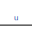
[diagram: root canvas - part 1/4, top center region]
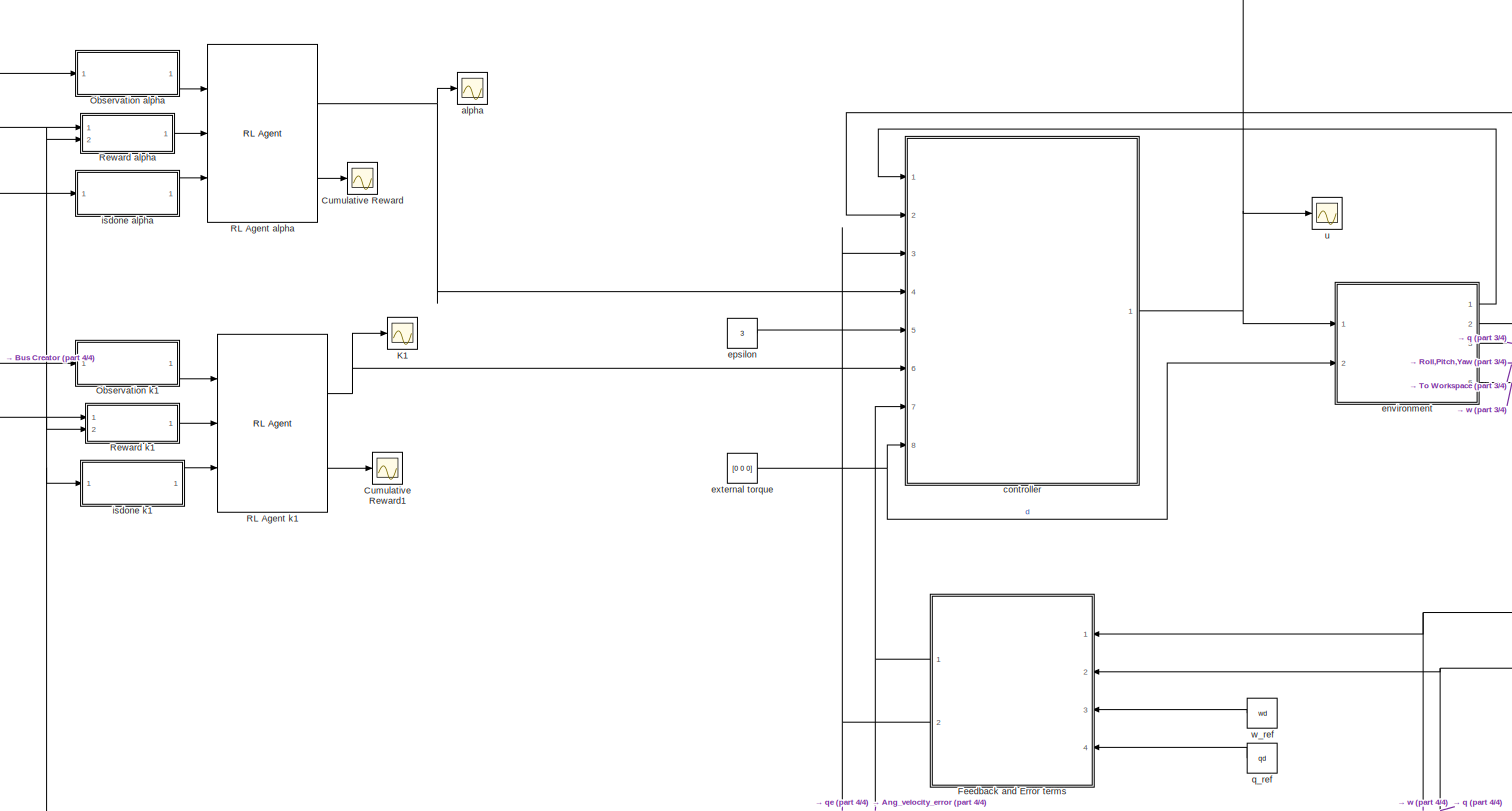
[diagram: root canvas - part 2/4, full width, middle band]
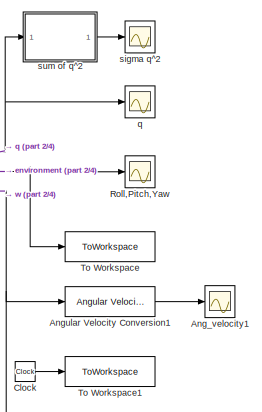
[diagram: root canvas - part 3/4, middle right region]
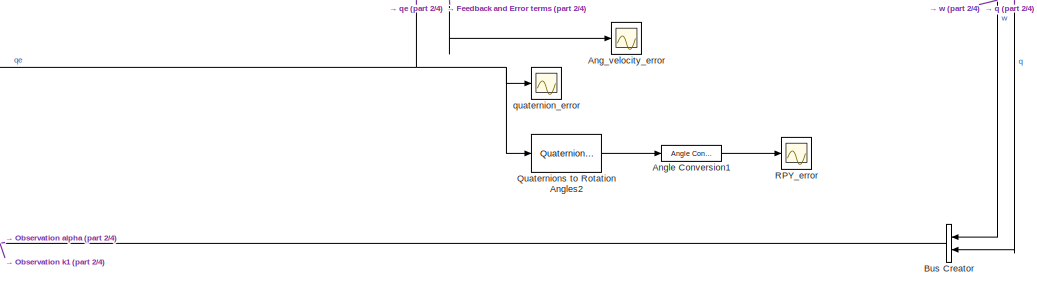
[diagram: root canvas - part 4/4, bottom center region]
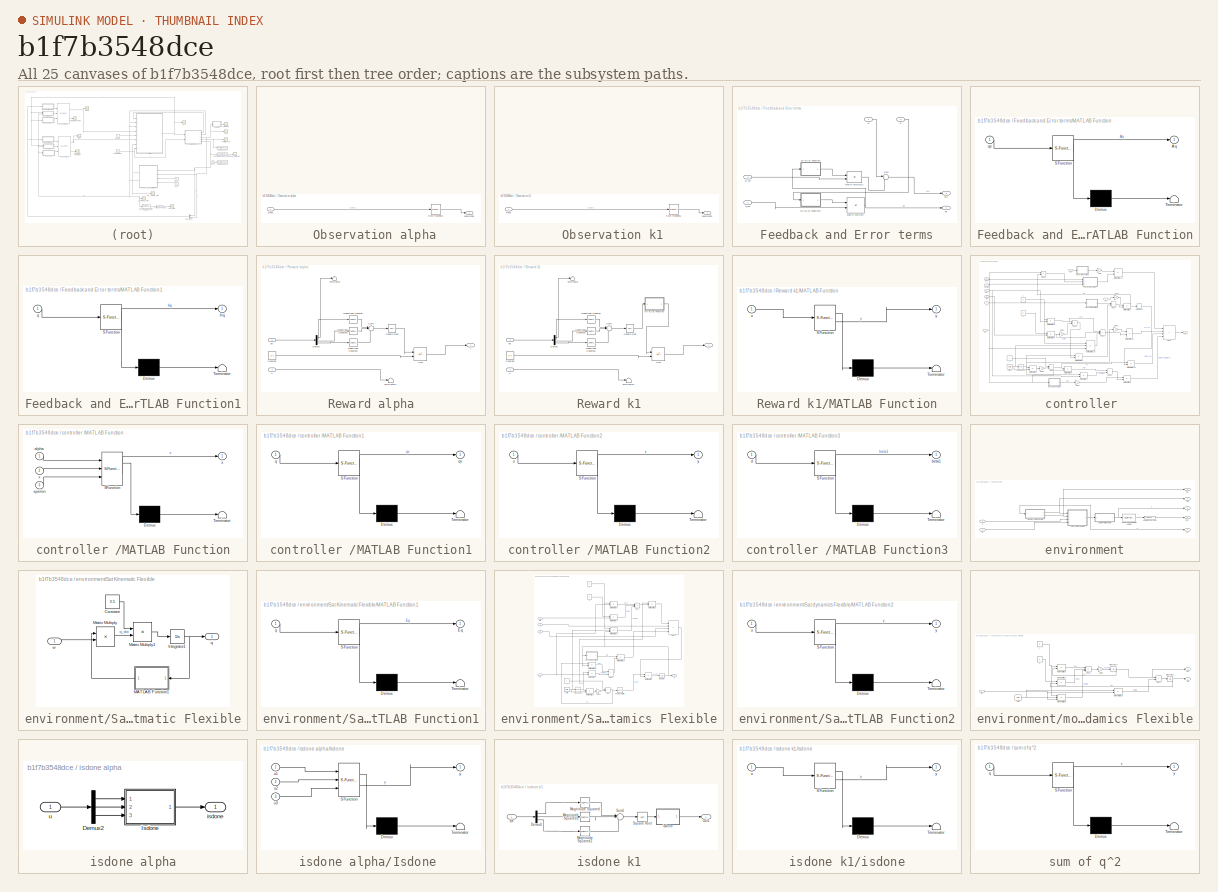
[diagram: thumbnail index - all 25 canvases of the model, root first then tree order]
MODEL slx_b1f7b3548dce
KIND model
CONFIG AbsTol = auto
CONFIG EnableMultiTasking = off
CONFIG FixedStep = 5
CONFIG MaxStep = auto
CONFIG MinStep = auto
CONFIG RelTol = auto
CONFIG SampleTimeConstraint = Unconstrained
CONFIG SolverName = VariableStepAuto
CONFIG StartTime = 0.0
CONFIG StopTime = 100
BLOCK [SubSystem]  Observation alpha
  Ports = [1, 1]
  RequestExecContextInheritance = off
BLOCK [RateTransition]  Observation alpha/Rate Transition1
BLOCK [Inport]  Observation alpha/meas
BLOCK [Outport]  Observation alpha/observation
  VectorParamsAs1DForOutWhenUnconnected = off
BLOCK [SubSystem]  Observation k1
  Ports = [1, 1]
  RequestExecContextInheritance = off
BLOCK [RateTransition]  Observation k1/Rate Transition1
BLOCK [Inport]  Observation k1/meas
BLOCK [Outport]  Observation k1/observation
  VectorParamsAs1DForOutWhenUnconnected = off
BLOCK [Scope] Ang_velocity1
  Floating = off
  NumInputPorts = 1
  Ports = [1]
  ScopeSpecificationString = Simulink.scopes.TimeScopeBlockCfg('CurrentConfiguration', extmgr.ConfigurationSet(extmgr.Configuration('Core','General UI',true),extmgr.Configuration('Core','Source UI',true),extmgr.Configuration('Sources','WiredSimulink',true,'DataLoggingVariableName','ScopeData4'),extmgr.Configuration('Visuals','Time Domain',true,'SerializedDisplays',{struct('MinYLimReal','-54.15469','MaxYLimReal','53.0558','YLa...<+1774ch>
BLOCK [Scope] Ang_velocity_error
  Floating = off
  NumInputPorts = 1
  Ports = [1]
  ScopeSpecificationString = Simulink.scopes.TimeScopeBlockCfg('CurrentConfiguration', extmgr.ConfigurationSet(extmgr.Configuration('Core','General UI',true),extmgr.Configuration('Core','Source UI',true),extmgr.Configuration('Sources','WiredSimulink',true,'DataLoggingVariableName','ScopeData1'),extmgr.Configuration('Visuals','Time Domain',true,'SerializedDisplays',{struct('MinYLimReal','-0.13149','MaxYLimReal','0.41258','YLab...<+1566ch>
BLOCK [Reference] Angle Conversion1  REF=aerolibconvert2/Angle Conversion
  Ports = [1, 1]
  SourceBlock = aerolibconvert2/Angle Conversion
  SourceProductBaseCode = AE
  SourceType = Angle Conversion
BLOCK [Reference] Angular Velocity Conversion1  REF=aerolibconvert2/Angular Velocity
Conversion
  Ports = [1, 1]
  SourceBlock = aerolibconvert2/Angular Velocity\nConversion
  SourceProductBaseCode = AE
  SourceType = Angular Velocity Conversion
BLOCK [BusCreator] Bus Creator
  DisplayOption = bar
  InheritFromInputs = on
  Inputs = 2
  Ports = [2, 1]
BLOCK [Clock] Clock
BLOCK [Scope] Cumulative Reward
  Floating = off
  NumInputPorts = 1
  Ports = [1]
  ScopeSpecificationString = Simulink.scopes.TimeScopeBlockCfg('CurrentConfiguration', extmgr.ConfigurationSet(extmgr.Configuration('Core','General UI',true),extmgr.Configuration('Core','Source UI',true),extmgr.Configuration('Sources','WiredSimulink',true,'DataLoggingVariableName','ScopeData2'),extmgr.Configuration('Visuals','Time Domain',true,'SerializedDisplays',{struct('MinYLimReal','-52.35763','MaxYLimReal','5.81751','YLa...<+1433ch>
BLOCK [Scope] Cumulative Reward1
  Floating = off
  NumInputPorts = 1
  Ports = [1]
  ScopeSpecificationString = Simulink.scopes.TimeScopeBlockCfg('CurrentConfiguration', extmgr.ConfigurationSet(extmgr.Configuration('Core','General UI',true),extmgr.Configuration('Core','Source UI',true),extmgr.Configuration('Sources','WiredSimulink',true,'DataLoggingVariableName','ScopeData5'),extmgr.Configuration('Visuals','Time Domain',true,'SerializedDisplays',{struct('MinYLimReal','-80.024','MaxYLimReal','8.89156','YLabe...<+1419ch>
BLOCK [SubSystem] Feedback and Error terms
  Ports = [4, 2]
  RequestExecContextInheritance = off
BLOCK [SubSystem] Feedback and Error terms/MATLAB Function
  ErrorFcn = Stateflow.Translate.translate
  PermitHierarchicalResolution = ExplicitOnly
  Ports = [1, 1]
  RequestExecContextInheritance = off
  SFBlockType = MATLAB Function
  TreatAsAtomicUnit = on
BLOCK [Demux] Feedback and Error terms/MATLAB Function/ Demux 
  Outputs = 1
  Ports = [1, 1]
BLOCK [S-Function] Feedback and Error terms/MATLAB Function/ SFunction 
  EnableBusSupport = on
  FunctionName = sf_sfun
  PortCounts = [1 2]
  Ports = [1, 2]
  SFcnIsStateOwnerBlock = off
  SFunctionDeploymentMode = off
  Tag = Stateflow S-Function 2
BLOCK [Terminator] Feedback and Error terms/MATLAB Function/ Terminator 
BLOCK [Outport] Feedback and Error terms/MATLAB Function/Aq
BLOCK [Inport] Feedback and Error terms/MATLAB Function/qe
BLOCK [SubSystem] Feedback and Error terms/MATLAB Function1
  ErrorFcn = Stateflow.Translate.translate
  PermitHierarchicalResolution = ExplicitOnly
  Ports = [1, 1]
  RequestExecContextInheritance = off
  SFBlockType = MATLAB Function
  TreatAsAtomicUnit = on
BLOCK [Demux] Feedback and Error terms/MATLAB Function1/ Demux 
  Outputs = 1
  Ports = [1, 1]
BLOCK [S-Function] Feedback and Error terms/MATLAB Function1/ SFunction 
  EnableBusSupport = on
  FunctionName = sf_sfun
  PortCounts = [1 2]
  Ports = [1, 2]
  SFcnIsStateOwnerBlock = off
  SFunctionDeploymentMode = off
  Tag = Stateflow S-Function 4
BLOCK [Terminator] Feedback and Error terms/MATLAB Function1/ Terminator 
BLOCK [Outport] Feedback and Error terms/MATLAB Function1/Hq
BLOCK [Inport] Feedback and Error terms/MATLAB Function1/q
BLOCK [Product] Feedback and Error terms/Matrix Multiply
  Multiplication = Matrix(*)
  Ports = [2, 1]
BLOCK [Product] Feedback and Error terms/Matrix Multiply1
  Multiplication = Matrix(*)
  Ports = [2, 1]
BLOCK [Sum] Feedback and Error terms/Sum
  Inputs = |+-
  Ports = [2, 1]
BLOCK [Inport] Feedback and Error terms/q
  Port = 2
BLOCK [Inport] Feedback and Error terms/q_ref
  Port = 4
BLOCK [Outport] Feedback and Error terms/qe
  Port = 2
BLOCK [Inport] Feedback and Error terms/w
BLOCK [Inport] Feedback and Error terms/w_ref
  Port = 3
BLOCK [Outport] Feedback and Error terms/we
BLOCK [Scope] K1
  Floating = off
  NumInputPorts = 1
  Ports = [1]
  ScopeSpecificationString = Simulink.scopes.TimeScopeBlockCfg('CurrentConfiguration', extmgr.ConfigurationSet(extmgr.Configuration('Core','General UI',true),extmgr.Configuration('Core','Source UI',true),extmgr.Configuration('Sources','WiredSimulink',true,'DataLoggingVariableName','ScopeData7'),extmgr.Configuration('Visuals','Time Domain',true,'SerializedDisplays',{struct('MinYLimReal','0.44849','MaxYLimReal','0.48848','YLabe...<+1385ch>
BLOCK [Reference] Quaternions to Rotation Angles2  REF=sharedtransform/Quaternions to Rotation Angles
  AttributesFormatString = Rotation Order: %<rotationOrder>
  Ports = [1, 1]
  SourceBlock = sharedtransform/Quaternions to Rotation Angles
  SourceProductBaseCode = AE,PW,DR,MT,VE
  SourceType = Quat2Ang
BLOCK [Reference] RL Agent alpha  REF=rllib/RL Agent
  Ports = [3, 2]
  SourceBlock = rllib/RL Agent
  SourceProductName = Reinforcement Learning
  SourceType = RL Agent
BLOCK [Reference] RL Agent k1  REF=rllib/RL Agent
  Ports = [3, 2]
  SourceBlock = rllib/RL Agent
  SourceProductName = Reinforcement Learning
  SourceType = RL Agent
BLOCK [Scope] RPY_error
  Floating = off
  NumInputPorts = 1
  Ports = [1]
  ScopeSpecificationString = Simulink.scopes.TimeScopeBlockCfg('CurrentConfiguration', extmgr.ConfigurationSet(extmgr.Configuration('Core','General UI',true),extmgr.Configuration('Core','Source UI',true),extmgr.Configuration('Sources','WiredSimulink',true,'DataLoggingVariableName','ScopeData1'),extmgr.Configuration('Visuals','Time Domain',true,'SerializedDisplays',{struct('MinYLimReal','-212.86208','MaxYLimReal','143.46869','...<+1573ch>
BLOCK [SubSystem] Reward alpha
  Ports = [2, 1]
  RequestExecContextInheritance = off
BLOCK [Constant] Reward alpha/Constant
  Value = 0.4
BLOCK [Demux] Reward alpha/Demux
  Ports = [1, 4]
BLOCK [Math] Reward alpha/Magnitude Squared
  Operator = magnitude^2
  Ports = [1, 1]
BLOCK [Math] Reward alpha/Magnitude Squared1
  Operator = magnitude^2
  Ports = [1, 1]
BLOCK [Math] Reward alpha/Magnitude Squared2
  Operator = magnitude^2
  Ports = [1, 1]
BLOCK [Sqrt] Reward alpha/Square Root
BLOCK [Sum] Reward alpha/Sum
  IconShape = rectangular
  Inputs = |--
  Ports = [2, 1]
BLOCK [Sum] Reward alpha/Sum1
  Inputs = |+++
  Ports = [3, 1]
BLOCK [Terminator] Reward alpha/Terminator
BLOCK [Terminator] Reward alpha/Terminator1
BLOCK [Inport] Reward alpha/qe
  Port = 2
BLOCK [Inport] Reward alpha/u
BLOCK [Outport] Reward alpha/y
BLOCK [SubSystem] Reward k1
  Ports = [2, 1]
  RequestExecContextInheritance = off
BLOCK [Constant] Reward k1/Constant
  Value = 0.4
BLOCK [Demux] Reward k1/Demux
  Ports = [1, 4]
BLOCK [SubSystem] Reward k1/MATLAB Function
  ErrorFcn = Stateflow.Translate.translate
  PermitHierarchicalResolution = ExplicitOnly
  Ports = [1, 1]
  RequestExecContextInheritance = off
  SFBlockType = MATLAB Function
  TreatAsAtomicUnit = on
BLOCK [Demux] Reward k1/MATLAB Function/ Demux 
  Outputs = 1
  Ports = [1, 1]
BLOCK [S-Function] Reward k1/MATLAB Function/ SFunction 
  EnableBusSupport = on
  FunctionName = sf_sfun
  PortCounts = [1 2]
  Ports = [1, 2]
  SFcnIsStateOwnerBlock = off
  SFunctionDeploymentMode = off
  Tag = Stateflow S-Function 13
BLOCK [Terminator] Reward k1/MATLAB Function/ Terminator 
BLOCK [Inport] Reward k1/MATLAB Function/u
BLOCK [Outport] Reward k1/MATLAB Function/y
BLOCK [Math] Reward k1/Magnitude Squared
  Operator = magnitude^2
  Ports = [1, 1]
BLOCK [Math] Reward k1/Magnitude Squared1
  Operator = magnitude^2
  Ports = [1, 1]
BLOCK [Math] Reward k1/Magnitude Squared2
  Operator = magnitude^2
  Ports = [1, 1]
BLOCK [Sqrt] Reward k1/Square Root
BLOCK [Sum] Reward k1/Sum
  IconShape = rectangular
  Inputs = |--
  Ports = [2, 1]
BLOCK [Sum] Reward k1/Sum1
  Inputs = |+++
  Ports = [3, 1]
BLOCK [Terminator] Reward k1/Terminator
BLOCK [Terminator] Reward k1/Terminator1
BLOCK [Inport] Reward k1/qe
  Port = 2
BLOCK [Inport] Reward k1/u
BLOCK [Outport] Reward k1/y
BLOCK [Scope] Roll,Pitch,Yaw
  Floating = off
  NumInputPorts = 1
  Ports = [1]
  ScopeSpecificationString = Simulink.scopes.TimeScopeBlockCfg('CurrentConfiguration', extmgr.ConfigurationSet(extmgr.Configuration('Core','General UI',true,'FigureColor',[0 0 0]),extmgr.Configuration('Core','Source UI',true),extmgr.Configuration('Sources','WiredSimulink',true,'DataLoggingVariableName','ScopeData3'),extmgr.Configuration('Visuals','Time Domain',true,'SerializedDisplays',{struct('MinYLimReal','-224.9879','MaxYL...<+1804ch>
BLOCK [ToWorkspace] To Workspace
  FixptAsFi = on
  MaxDataPoints = inf
  Ports = [1]
  SaveFormat = Timeseries
  VariableName = RPY
BLOCK [ToWorkspace] To Workspace1
  FixptAsFi = on
  MaxDataPoints = inf
  Ports = [1]
  SaveFormat = Timeseries
  VariableName = t
BLOCK [Scope] alpha
  Floating = off
  NumInputPorts = 1
  Ports = [1]
  ScopeSpecificationString = Simulink.scopes.TimeScopeBlockCfg('CurrentConfiguration', extmgr.ConfigurationSet(extmgr.Configuration('Core','General UI',true),extmgr.Configuration('Core','Source UI',true),extmgr.Configuration('Sources','WiredSimulink',true,'DataLoggingVariableName','ScopeData4'),extmgr.Configuration('Visuals','Time Domain',true,'SerializedDisplays',{struct('MinYLimReal','0.39999','MaxYLimReal','0.40024','YLabe...<+1373ch>
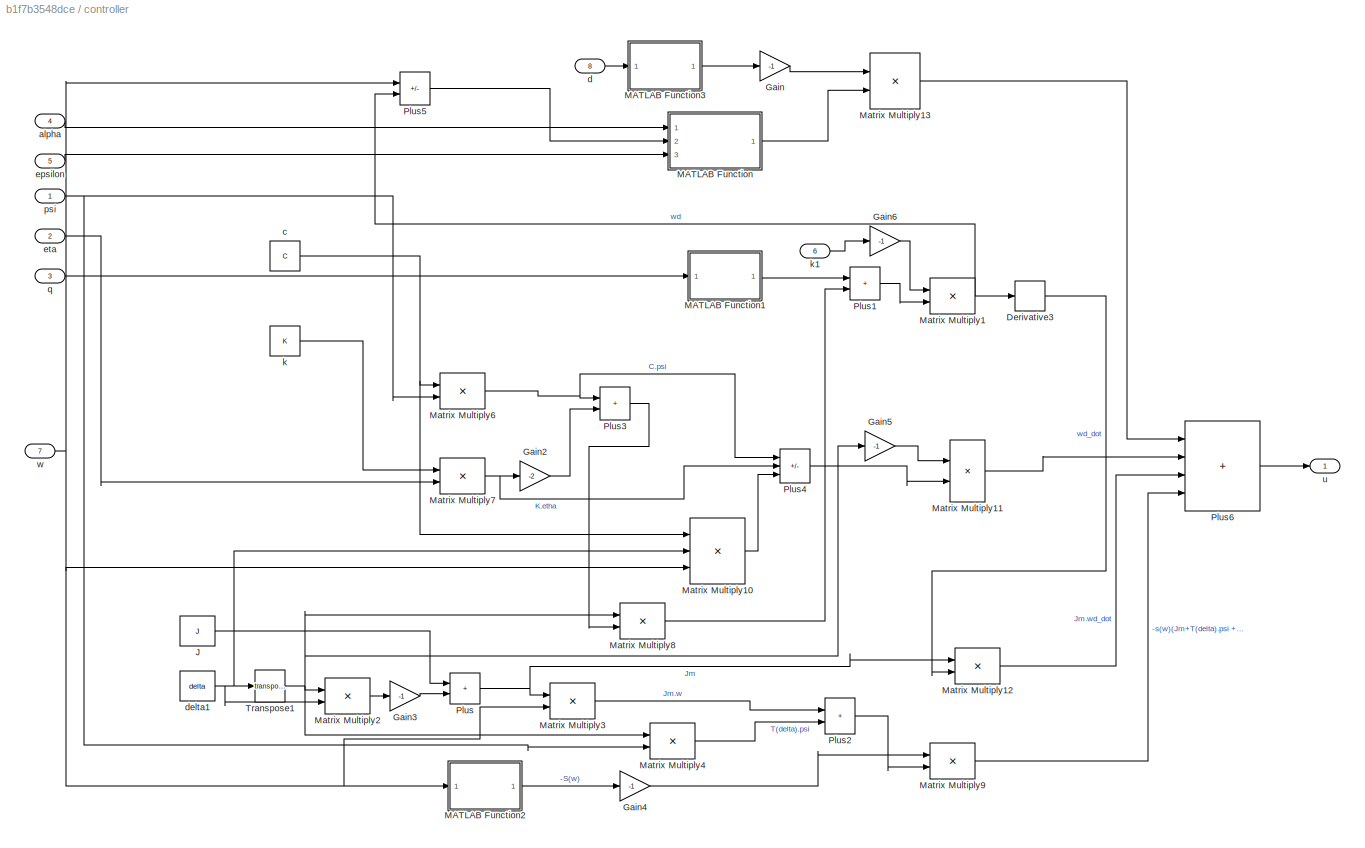
BLOCK [SubSystem] controller 
  Ports = [8, 1]
  RequestExecContextInheritance = off
BLOCK [Derivative] controller /Derivative3
BLOCK [Gain] controller /Gain
  Gain = -1
BLOCK [Gain] controller /Gain2
  Gain = -2
BLOCK [Gain] controller /Gain3
  Gain = -1
BLOCK [Gain] controller /Gain4
  Gain = -1
BLOCK [Gain] controller /Gain5
  Gain = -1
BLOCK [Gain] controller /Gain6
  Gain = -1
BLOCK [Constant] controller /J
  Value = J
BLOCK [SubSystem] controller /MATLAB Function
  ErrorFcn = Stateflow.Translate.translate
  PermitHierarchicalResolution = ExplicitOnly
  Ports = [3, 1]
  RequestExecContextInheritance = off
  SFBlockType = MATLAB Function
  TreatAsAtomicUnit = on
BLOCK [Demux] controller /MATLAB Function/ Demux 
  Outputs = 1
  Ports = [1, 1]
BLOCK [S-Function] controller /MATLAB Function/ SFunction 
  EnableBusSupport = on
  FunctionName = sf_sfun
  PortCounts = [3 2]
  Ports = [3, 2]
  SFcnIsStateOwnerBlock = off
  SFunctionDeploymentMode = off
  Tag = Stateflow S-Function 6
BLOCK [Terminator] controller /MATLAB Function/ Terminator 
BLOCK [Inport] controller /MATLAB Function/alpha
BLOCK [Inport] controller /MATLAB Function/epsilon
  Port = 3
BLOCK [Outport] controller /MATLAB Function/s
BLOCK [Inport] controller /MATLAB Function/x
  Port = 2
BLOCK [SubSystem] controller /MATLAB Function1
  ErrorFcn = Stateflow.Translate.translate
  PermitHierarchicalResolution = ExplicitOnly
  Ports = [1, 1]
  RequestExecContextInheritance = off
  SFBlockType = MATLAB Function
  TreatAsAtomicUnit = on
BLOCK [Demux] controller /MATLAB Function1/ Demux 
  Outputs = 1
  Ports = [1, 1]
BLOCK [S-Function] controller /MATLAB Function1/ SFunction 
  EnableBusSupport = on
  FunctionName = sf_sfun
  PortCounts = [1 2]
  Ports = [1, 2]
  SFcnIsStateOwnerBlock = off
  SFunctionDeploymentMode = off
  Tag = Stateflow S-Function 8
BLOCK [Terminator] controller /MATLAB Function1/ Terminator 
BLOCK [Inport] controller /MATLAB Function1/q
BLOCK [Outport] controller /MATLAB Function1/qv
BLOCK [SubSystem] controller /MATLAB Function2
  ErrorFcn = Stateflow.Translate.translate
  NameLocation = top
  PermitHierarchicalResolution = ExplicitOnly
  Ports = [1, 1]
  RequestExecContextInheritance = off
  SFBlockType = MATLAB Function
  TreatAsAtomicUnit = on
BLOCK [Demux] controller /MATLAB Function2/ Demux 
  Outputs = 1
  Ports = [1, 1]
BLOCK [S-Function] controller /MATLAB Function2/ SFunction 
  EnableBusSupport = on
  FunctionName = sf_sfun
  PortCounts = [1 2]
  Ports = [1, 2]
  SFcnIsStateOwnerBlock = off
  SFunctionDeploymentMode = off
  Tag = Stateflow S-Function 9
BLOCK [Terminator] controller /MATLAB Function2/ Terminator 
BLOCK [Inport] controller /MATLAB Function2/u
BLOCK [Outport] controller /MATLAB Function2/y
BLOCK [SubSystem] controller /MATLAB Function3
  ErrorFcn = Stateflow.Translate.translate
  PermitHierarchicalResolution = ExplicitOnly
  Ports = [1, 1]
  RequestExecContextInheritance = off
  SFBlockType = MATLAB Function
  TreatAsAtomicUnit = on
BLOCK [Demux] controller /MATLAB Function3/ Demux 
  Outputs = 1
  Ports = [1, 1]
BLOCK [S-Function] controller /MATLAB Function3/ SFunction 
  EnableBusSupport = on
  FunctionName = sf_sfun
  PortCounts = [1 2]
  Ports = [1, 2]
  SFcnIsStateOwnerBlock = off
  SFunctionDeploymentMode = off
  Tag = Stateflow S-Function 10
BLOCK [Terminator] controller /MATLAB Function3/ Terminator 
BLOCK [Outport] controller /MATLAB Function3/beta1
BLOCK [Inport] controller /MATLAB Function3/d
BLOCK [Product] controller /Matrix Multiply1
  Ports = [2, 1]
BLOCK [Product] controller /Matrix Multiply10
  Inputs = 3
  Multiplication = Matrix(*)
  Ports = [3, 1]
BLOCK [Product] controller /Matrix Multiply11
  Multiplication = Matrix(*)
  Ports = [2, 1]
BLOCK [Product] controller /Matrix Multiply12
  Multiplication = Matrix(*)
  Ports = [2, 1]
BLOCK [Product] controller /Matrix Multiply13
  Ports = [2, 1]
BLOCK [Product] controller /Matrix Multiply2
  Multiplication = Matrix(*)
  Ports = [2, 1]
BLOCK [Product] controller /Matrix Multiply3
  Multiplication = Matrix(*)
  Ports = [2, 1]
BLOCK [Product] controller /Matrix Multiply4
  Multiplication = Matrix(*)
  Ports = [2, 1]
BLOCK [Product] controller /Matrix Multiply6
  InputSameDT = on
  Multiplication = Matrix(*)
  Ports = [2, 1]
BLOCK [Product] controller /Matrix Multiply7
  Multiplication = Matrix(*)
  Ports = [2, 1]
BLOCK [Product] controller /Matrix Multiply8
  Multiplication = Matrix(*)
  Ports = [2, 1]
BLOCK [Product] controller /Matrix Multiply9
  Multiplication = Matrix(*)
  Ports = [2, 1]
BLOCK [Sum] controller /Plus
  IconShape = rectangular
  Ports = [2, 1]
BLOCK [Sum] controller /Plus1
  IconShape = rectangular
  Ports = [2, 1]
BLOCK [Sum] controller /Plus2
  IconShape = rectangular
  Ports = [2, 1]
BLOCK [Sum] controller /Plus3
  IconShape = rectangular
  Ports = [2, 1]
BLOCK [Sum] controller /Plus4
  IconShape = rectangular
  Inputs = ++-
  Ports = [3, 1]
BLOCK [Sum] controller /Plus5
  IconShape = rectangular
  Inputs = +-
  Ports = [2, 1]
BLOCK [Sum] controller /Plus6
  IconShape = rectangular
  Inputs = ++++
  Ports = [4, 1]
BLOCK [Math] controller /Transpose1
  Operator = transpose
  Ports = [1, 1]
BLOCK [Inport] controller /alpha
  Port = 4
BLOCK [Constant] controller /c
  NameLocation = top
  Value = C
BLOCK [Inport] controller /d
  Port = 8
BLOCK [Constant] controller /delta1
  Value = delta
BLOCK [Inport] controller /epsilon
  Port = 5
BLOCK [Inport] controller /eta
  Port = 2
BLOCK [Constant] controller /k
  NameLocation = top
  Value = K
BLOCK [Inport] controller /k1
  Port = 6
BLOCK [Inport] controller /psi
BLOCK [Inport] controller /q
  Port = 3
BLOCK [Outport] controller /u
BLOCK [Inport] controller /w
  Port = 7
BLOCK [SubSystem] environment
  Ports = [2, 5]
  RequestExecContextInheritance = off
BLOCK [Reference] environment/Angle Conversion2  REF=aerolibconvert2/Angle Conversion
  Ports = [1, 1]
  SourceBlock = aerolibconvert2/Angle Conversion
  SourceProductBaseCode = AE
  SourceType = Angle Conversion
BLOCK [Reference] environment/Quaternions to Rotation Angles1  REF=sharedtransform/Quaternions to Rotation Angles
  AttributesFormatString = Rotation Order: %<rotationOrder>
  Ports = [1, 1]
  SourceBlock = sharedtransform/Quaternions to Rotation Angles
  SourceProductBaseCode = AE,PW,DR,MT,VE
  SourceType = Quat2Ang
BLOCK [Outport] environment/RPY
  Port = 4
BLOCK [SubSystem] environment/Sat Kinematic Flexible
  Ports = [1, 1]
  RequestExecContextInheritance = off
BLOCK [Constant] environment/Sat Kinematic Flexible/Constant
  Value = 0.5
BLOCK [Integrator] environment/Sat Kinematic Flexible/Integrator1
  ContinuousStateAttributes = 'q'
  InitialCondition = q0
  Ports = [1, 1]
BLOCK [SubSystem] environment/Sat Kinematic Flexible/MATLAB Function1
  ErrorFcn = Stateflow.Translate.translate
  PermitHierarchicalResolution = ExplicitOnly
  Ports = [1, 1]
  RequestExecContextInheritance = off
  SFBlockType = MATLAB Function
  TreatAsAtomicUnit = on
BLOCK [Demux] environment/Sat Kinematic Flexible/MATLAB Function1/ Demux 
  Outputs = 1
  Ports = [1, 1]
BLOCK [S-Function] environment/Sat Kinematic Flexible/MATLAB Function1/ SFunction 
  EnableBusSupport = on
  FunctionName = sf_sfun
  PortCounts = [1 2]
  Ports = [1, 2]
  SFcnIsStateOwnerBlock = off
  SFunctionDeploymentMode = off
  Tag = Stateflow S-Function 12
BLOCK [Terminator] environment/Sat Kinematic Flexible/MATLAB Function1/ Terminator 
BLOCK [Outport] environment/Sat Kinematic Flexible/MATLAB Function1/Eq
BLOCK [Inport] environment/Sat Kinematic Flexible/MATLAB Function1/q
BLOCK [Product] environment/Sat Kinematic Flexible/Matrix Multiply
  Multiplication = Matrix(*)
  Ports = [2, 1]
BLOCK [Product] environment/Sat Kinematic Flexible/Matrix Multiply1
  Ports = [2, 1]
BLOCK [Outport] environment/Sat Kinematic Flexible/q
BLOCK [Inport] environment/Sat Kinematic Flexible/w
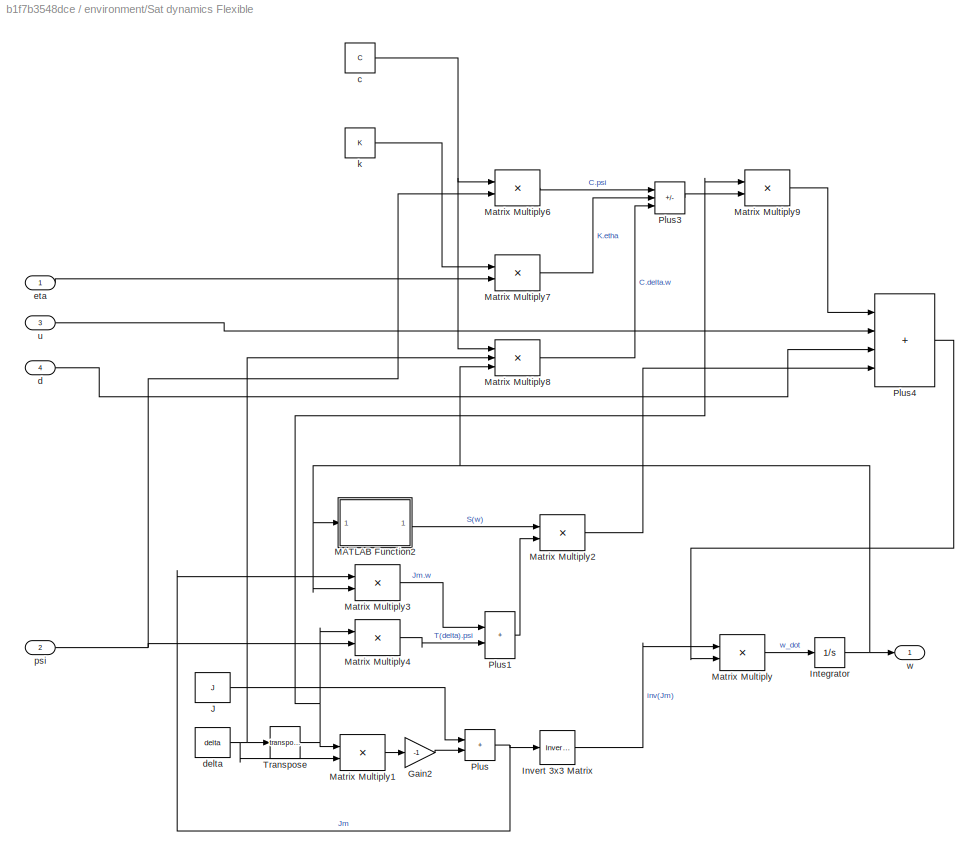
BLOCK [SubSystem] environment/Sat dynamics Flexible
  Ports = [4, 1]
  RequestExecContextInheritance = off
BLOCK [Gain] environment/Sat dynamics Flexible/Gain2
  Gain = -1
BLOCK [Integrator] environment/Sat dynamics Flexible/Integrator
  ContinuousStateAttributes = 'w'
  InitialCondition = w0
  Ports = [1, 1]
BLOCK [Reference] environment/Sat dynamics Flexible/Invert 3x3 Matrix  REF=aerolibutil/Invert 
3x3 Matrix
  Ports = [1, 1]
  SourceBlock = aerolibutil/Invert \n3x3 Matrix
  SourceProductBaseCode = AE
  SourceType = Invert 3x3 Matrix
BLOCK [Constant] environment/Sat dynamics Flexible/J
  Value = J
BLOCK [SubSystem] environment/Sat dynamics Flexible/MATLAB Function2
  ErrorFcn = Stateflow.Translate.translate
  NameLocation = top
  PermitHierarchicalResolution = ExplicitOnly
  Ports = [1, 1]
  RequestExecContextInheritance = off
  SFBlockType = MATLAB Function
  TreatAsAtomicUnit = on
BLOCK [Demux] environment/Sat dynamics Flexible/MATLAB Function2/ Demux 
  Outputs = 1
  Ports = [1, 1]
BLOCK [S-Function] environment/Sat dynamics Flexible/MATLAB Function2/ SFunction 
  EnableBusSupport = on
  FunctionName = sf_sfun
  PortCounts = [1 2]
  Ports = [1, 2]
  SFcnIsStateOwnerBlock = off
  SFunctionDeploymentMode = off
  Tag = Stateflow S-Function 15
BLOCK [Terminator] environment/Sat dynamics Flexible/MATLAB Function2/ Terminator 
BLOCK [Inport] environment/Sat dynamics Flexible/MATLAB Function2/u
BLOCK [Outport] environment/Sat dynamics Flexible/MATLAB Function2/y
BLOCK [Product] environment/Sat dynamics Flexible/Matrix Multiply
  Multiplication = Matrix(*)
  Ports = [2, 1]
BLOCK [Product] environment/Sat dynamics Flexible/Matrix Multiply1
  Multiplication = Matrix(*)
  Ports = [2, 1]
BLOCK [Product] environment/Sat dynamics Flexible/Matrix Multiply2
  Multiplication = Matrix(*)
  Ports = [2, 1]
BLOCK [Product] environment/Sat dynamics Flexible/Matrix Multiply3
  Multiplication = Matrix(*)
  Ports = [2, 1]
BLOCK [Product] environment/Sat dynamics Flexible/Matrix Multiply4
  Multiplication = Matrix(*)
  Ports = [2, 1]
BLOCK [Product] environment/Sat dynamics Flexible/Matrix Multiply6
  InputSameDT = on
  Multiplication = Matrix(*)
  Ports = [2, 1]
BLOCK [Product] environment/Sat dynamics Flexible/Matrix Multiply7
  Multiplication = Matrix(*)
  Ports = [2, 1]
BLOCK [Product] environment/Sat dynamics Flexible/Matrix Multiply8
  Inputs = 3
  Multiplication = Matrix(*)
  Ports = [3, 1]
BLOCK [Product] environment/Sat dynamics Flexible/Matrix Multiply9
  InputSameDT = on
  Multiplication = Matrix(*)
  Ports = [2, 1]
BLOCK [Sum] environment/Sat dynamics Flexible/Plus
  IconShape = rectangular
  Ports = [2, 1]
BLOCK [Sum] environment/Sat dynamics Flexible/Plus1
  IconShape = rectangular
  Ports = [2, 1]
BLOCK [Sum] environment/Sat dynamics Flexible/Plus3
  IconShape = rectangular
  Inputs = ++-
  Ports = [3, 1]
BLOCK [Sum] environment/Sat dynamics Flexible/Plus4
  IconShape = rectangular
  Inputs = ++++
  Ports = [4, 1]
BLOCK [Math] environment/Sat dynamics Flexible/Transpose
  Operator = transpose
  Ports = [1, 1]
BLOCK [Constant] environment/Sat dynamics Flexible/c
  NameLocation = top
  Value = C
  VectorParams1D = off
BLOCK [Inport] environment/Sat dynamics Flexible/d
  Port = 4
BLOCK [Constant] environment/Sat dynamics Flexible/delta
  Value = delta
BLOCK [Inport] environment/Sat dynamics Flexible/eta
BLOCK [Constant] environment/Sat dynamics Flexible/k
  NameLocation = top
  Value = K
  VectorParams1D = off
BLOCK [Inport] environment/Sat dynamics Flexible/psi
  Port = 2
BLOCK [Inport] environment/Sat dynamics Flexible/u
  Port = 3
BLOCK [Outport] environment/Sat dynamics Flexible/w
BLOCK [Inport] environment/d
  Port = 2
BLOCK [Outport] environment/eta
  Port = 2
BLOCK [SubSystem] environment/modal dynamics Flexible
  Ports = [1, 2]
  RequestExecContextInheritance = off
BLOCK [Gain] environment/modal dynamics Flexible/Gain3
  Gain = -1
BLOCK [Integrator] environment/modal dynamics Flexible/Integrator2
  ContinuousStateAttributes = 'psi'
  InitialCondition = psi0
  Ports = [1, 1]
BLOCK [Integrator] environment/modal dynamics Flexible/Integrator3
  ContinuousStateAttributes = 'eta'
  InitialCondition = eta0
  Ports = [1, 1]
BLOCK [Product] environment/modal dynamics Flexible/Matrix Multiply6
  InputSameDT = on
  Multiplication = Matrix(*)
  Ports = [2, 1]
BLOCK [Product] environment/modal dynamics Flexible/Matrix Multiply7
  Multiplication = Matrix(*)
  Ports = [2, 1]
BLOCK [Product] environment/modal dynamics Flexible/Matrix Multiply8
  Inputs = 3
  Multiplication = Matrix(*)
  Ports = [3, 1]
BLOCK [Product] environment/modal dynamics Flexible/Matrix Multiply9
  Multiplication = Matrix(*)
  Ports = [2, 1]
BLOCK [Sum] environment/modal dynamics Flexible/Plus2
  IconShape = rectangular
  Inputs = +-
  Ports = [2, 1]
BLOCK [Sum] environment/modal dynamics Flexible/Plus3
  IconShape = rectangular
  Inputs = ++-
  Ports = [3, 1]
BLOCK [Constant] environment/modal dynamics Flexible/c
  NameLocation = top
  Value = C
BLOCK [Constant] environment/modal dynamics Flexible/delta
  Value = delta
BLOCK [Outport] environment/modal dynamics Flexible/eta
BLOCK [Constant] environment/modal dynamics Flexible/k
  NameLocation = top
  Value = K
BLOCK [Outport] environment/modal dynamics Flexible/psi
  Port = 2
BLOCK [Inport] environment/modal dynamics Flexible/w
BLOCK [Outport] environment/psi
BLOCK [Outport] environment/q
  Port = 3
BLOCK [Inport] environment/u
BLOCK [Outport] environment/w
  Port = 5
BLOCK [Constant] epsilon
  Value = 3
BLOCK [Constant] external torque
  Value = [0 0 0]
BLOCK [SubSystem] isdone alpha
  Ports = [1, 1]
  RequestExecContextInheritance = off
BLOCK [Demux] isdone alpha/Demux2
  Outputs = 3
  Ports = [1, 3]
BLOCK [SubSystem] isdone alpha/Isdone 
  ErrorFcn = Stateflow.Translate.translate
  PermitHierarchicalResolution = ExplicitOnly
  Ports = [3, 1]
  RequestExecContextInheritance = off
  SFBlockType = MATLAB Function
  TreatAsAtomicUnit = on
BLOCK [Demux] isdone alpha/Isdone / Demux 
  Outputs = 1
  Ports = [1, 1]
BLOCK [S-Function] isdone alpha/Isdone / SFunction 
  EnableBusSupport = on
  FunctionName = sf_sfun
  PortCounts = [3 2]
  Ports = [3, 2]
  SFcnIsStateOwnerBlock = off
  SFunctionDeploymentMode = off
  Tag = Stateflow S-Function 1
BLOCK [Terminator] isdone alpha/Isdone / Terminator 
BLOCK [Inport] isdone alpha/Isdone /u1
BLOCK [Inport] isdone alpha/Isdone /u2
  Port = 2
BLOCK [Inport] isdone alpha/Isdone /u3
  Port = 3
BLOCK [Outport] isdone alpha/Isdone /y
BLOCK [Outport] isdone alpha/isdone
BLOCK [Inport] isdone alpha/u
BLOCK [SubSystem] isdone k1
  Ports = [1, 1]
  RequestExecContextInheritance = off
BLOCK [Demux] isdone k1/Demux3
  Outputs = 3
  Ports = [1, 3]
BLOCK [Math] isdone k1/Magnitude Squared
  Operator = magnitude^2
  Ports = [1, 1]
BLOCK [Math] isdone k1/Magnitude Squared1
  Operator = magnitude^2
  Ports = [1, 1]
BLOCK [Math] isdone k1/Magnitude Squared2
  Operator = magnitude^2
  Ports = [1, 1]
BLOCK [Outport] isdone k1/Out1
BLOCK [Sqrt] isdone k1/Square Root
BLOCK [Sum] isdone k1/Sum1
  Inputs = |+++
  Ports = [3, 1]
BLOCK [SubSystem] isdone k1/isdone
  ErrorFcn = Stateflow.Translate.translate
  PermitHierarchicalResolution = ExplicitOnly
  Ports = [1, 1]
  RequestExecContextInheritance = off
  SFBlockType = MATLAB Function
  TreatAsAtomicUnit = on
BLOCK [Demux] isdone k1/isdone/ Demux 
  Outputs = 1
  Ports = [1, 1]
BLOCK [S-Function] isdone k1/isdone/ SFunction 
  EnableBusSupport = on
  FunctionName = sf_sfun
  PortCounts = [1 2]
  Ports = [1, 2]
  SFcnIsStateOwnerBlock = off
  SFunctionDeploymentMode = off
  Tag = Stateflow S-Function 14
BLOCK [Terminator] isdone k1/isdone/ Terminator 
BLOCK [Inport] isdone k1/isdone/u
BLOCK [Outport] isdone k1/isdone/y
BLOCK [Inport] isdone k1/qe
BLOCK [Scope] q
  Floating = off
  NumInputPorts = 1
  Ports = [1]
  ScopeSpecificationString = Simulink.scopes.TimeScopeBlockCfg('CurrentConfiguration', extmgr.ConfigurationSet(extmgr.Configuration('Core','General UI',true),extmgr.Configuration('Core','Source UI',true),extmgr.Configuration('Sources','WiredSimulink',true,'DataLoggingVariableName','ScopeData1'),extmgr.Configuration('Visuals','Time Domain',true,'SerializedDisplays',{struct('MinYLimReal','-1.09319','MaxYLimReal','1.23257','YLab...<+1652ch>
BLOCK [Constant] q_ref
  Value = qd
BLOCK [Scope] quaternion_error
  Floating = off
  NumInputPorts = 1
  Ports = [1]
  ScopeSpecificationString = Simulink.scopes.TimeScopeBlockCfg('CurrentConfiguration', extmgr.ConfigurationSet(extmgr.Configuration('Core','General UI',true),extmgr.Configuration('Core','Source UI',true),extmgr.Configuration('Sources','WiredSimulink',true,'DataLoggingVariableName','ScopeData2'),extmgr.Configuration('Visuals','Time Domain',true,'SerializedDisplays',{struct('MinYLimReal','-1.2377','MaxYLimReal','1.13927','YLabe...<+1617ch>
BLOCK [Scope] sigma q^2
  Floating = off
  NumInputPorts = 1
  Ports = [1]
  ScopeSpecificationString = Simulink.scopes.TimeScopeBlockCfg('CurrentConfiguration', extmgr.ConfigurationSet(extmgr.Configuration('Core','General UI',true),extmgr.Configuration('Core','Source UI',true),extmgr.Configuration('Sources','WiredSimulink',true,'DataLoggingVariableName','ScopeData2'),extmgr.Configuration('Visuals','Time Domain',true,'SerializedDisplays',{struct('MinYLimReal','0.999978','MaxYLimReal','1.000002','YLa...<+1540ch>
BLOCK [SubSystem] sum of q^2
  ErrorFcn = Stateflow.Translate.translate
  PermitHierarchicalResolution = ExplicitOnly
  Ports = [1, 1]
  RequestExecContextInheritance = off
  SFBlockType = MATLAB Function
  TreatAsAtomicUnit = on
BLOCK [Demux] sum of q^2/ Demux 
  Outputs = 1
  Ports = [1, 1]
BLOCK [S-Function] sum of q^2/ SFunction 
  EnableBusSupport = on
  FunctionName = sf_sfun
  PortCounts = [1 2]
  Ports = [1, 2]
  SFcnIsStateOwnerBlock = off
  SFunctionDeploymentMode = off
  Tag = Stateflow S-Function 3
BLOCK [Terminator] sum of q^2/ Terminator 
BLOCK [Inport] sum of q^2/q
BLOCK [Outport] sum of q^2/y
BLOCK [Scope] u
  Floating = off
  NumInputPorts = 1
  Ports = [1]
  ScopeSpecificationString = Simulink.scopes.TimeScopeBlockCfg('CurrentConfiguration', extmgr.ConfigurationSet(extmgr.Configuration('Core','General UI',true,'FigureColor',[0 0 0]),extmgr.Configuration('Core','Source UI',true),extmgr.Configuration('Sources','WiredSimulink',true,'DataLoggingVariableName','ScopeData4'),extmgr.Configuration('Visuals','Time Domain',true,'SerializedDisplays',{struct('MinYLimReal','-93.21287','MaxYL...<+1562ch>
BLOCK [Constant] w_ref
  Value = wd
LINE  Observation alpha/Rate Transition1:1 ->  Observation alpha/observation:1
LINE  Observation alpha/meas:1 ->  Observation alpha/Rate Transition1:1
LINE  Observation alpha:1 -> RL Agent alpha:1
LINE  Observation k1/Rate Transition1:1 ->  Observation k1/observation:1
LINE  Observation k1/meas:1 ->  Observation k1/Rate Transition1:1
LINE  Observation k1:1 -> RL Agent k1:1
LINE Angle Conversion1:1 -> RPY_error:1
LINE Angular Velocity Conversion1:1 -> Ang_velocity1:1
NET Bus Creator:1 ->  Observation alpha:1,  Observation k1:1
LINE Clock:1 -> To Workspace1:1
LINE Feedback and Error terms/MATLAB Function1:1 -> Feedback and Error terms/Matrix Multiply:1
LINE Feedback and Error terms/MATLAB Function:1 -> Feedback and Error terms/Matrix Multiply1:1
LINE Feedback and Error terms/Matrix Multiply1:1 -> Feedback and Error terms/Sum:2
NET Feedback and Error terms/Matrix Multiply:1 -> Feedback and Error terms/MATLAB Function:1, Feedback and Error terms/qe:1
LINE Feedback and Error terms/Sum:1 -> Feedback and Error terms/we:1
LINE Feedback and Error terms/q:1 -> Feedback and Error terms/MATLAB Function1:1
LINE Feedback and Error terms/q_ref:1 -> Feedback and Error terms/Matrix Multiply:2
LINE Feedback and Error terms/w:1 -> Feedback and Error terms/Sum:1
LINE Feedback and Error terms/w_ref:1 -> Feedback and Error terms/Matrix Multiply1:2
NET Feedback and Error terms:1 -> Ang_velocity_error:1, controller :7
NET Feedback and Error terms:2 -> Quaternions to Rotation Angles2:1, Reward alpha:2, Reward k1:2, controller :3, isdone k1:1, quaternion_error:1
LINE Quaternions to Rotation Angles2:1 -> Angle Conversion1:1
NET RL Agent alpha:1 -> alpha:1, controller :4
LINE RL Agent alpha:2 -> Cumulative Reward:1
NET RL Agent k1:1 -> K1:1, controller :6
LINE RL Agent k1:2 -> Cumulative Reward1:1
LINE Reward alpha/Constant:1 -> Reward alpha/Sum:2
LINE Reward alpha/Demux:1 -> Reward alpha/Terminator:1
LINE Reward alpha/Demux:2 -> Reward alpha/Magnitude Squared:1
LINE Reward alpha/Demux:3 -> Reward alpha/Magnitude Squared1:1
LINE Reward alpha/Demux:4 -> Reward alpha/Magnitude Squared2:1
LINE Reward alpha/Magnitude Squared1:1 -> Reward alpha/Sum1:2
LINE Reward alpha/Magnitude Squared2:1 -> Reward alpha/Sum1:3
LINE Reward alpha/Magnitude Squared:1 -> Reward alpha/Sum1:1
LINE Reward alpha/Square Root:1 -> Reward alpha/Sum:1
LINE Reward alpha/Sum1:1 -> Reward alpha/Square Root:1
LINE Reward alpha/Sum:1 -> Reward alpha/y:1
LINE Reward alpha/qe:1 -> Reward alpha/Demux:1
LINE Reward alpha/u:1 -> Reward alpha/Terminator1:1
LINE Reward alpha:1 -> RL Agent alpha:2
LINE Reward k1/Constant:1 -> Reward k1/Sum:2
LINE Reward k1/Demux:1 -> Reward k1/Terminator:1
LINE Reward k1/Demux:2 -> Reward k1/Magnitude Squared:1
LINE Reward k1/Demux:3 -> Reward k1/Magnitude Squared1:1
LINE Reward k1/Demux:4 -> Reward k1/Magnitude Squared2:1
LINE Reward k1/MATLAB Function:1 -> Reward k1/Sum:1
LINE Reward k1/Magnitude Squared1:1 -> Reward k1/Sum1:2
LINE Reward k1/Magnitude Squared2:1 -> Reward k1/Sum1:3
LINE Reward k1/Magnitude Squared:1 -> Reward k1/Sum1:1
LINE Reward k1/Square Root:1 -> Reward k1/MATLAB Function:1
LINE Reward k1/Sum1:1 -> Reward k1/Square Root:1
LINE Reward k1/Sum:1 -> Reward k1/y:1
LINE Reward k1/qe:1 -> Reward k1/Demux:1
LINE Reward k1/u:1 -> Reward k1/Terminator1:1
LINE Reward k1:1 -> RL Agent k1:2
LINE controller /Derivative3:1 -> controller /Matrix Multiply12:2
LINE controller /Gain2:1 -> controller /Plus3:2
LINE controller /Gain3:1 -> controller /Plus:2
LINE controller /Gain4:1 -> controller /Matrix Multiply9:1
LINE controller /Gain5:1 -> controller /Matrix Multiply11:1
LINE controller /Gain6:1 -> controller /Matrix Multiply1:1
LINE controller /Gain:1 -> controller /Matrix Multiply13:1
LINE controller /J:1 -> controller /Plus:1
LINE controller /MATLAB Function1:1 -> controller /Plus1:1
LINE controller /MATLAB Function2:1 -> controller /Gain4:1
LINE controller /MATLAB Function3:1 -> controller /Gain:1
LINE controller /MATLAB Function:1 -> controller /Matrix Multiply13:2
LINE controller /Matrix Multiply10:1 -> controller /Plus4:3
LINE controller /Matrix Multiply11:1 -> controller /Plus6:2
LINE controller /Matrix Multiply12:1 -> controller /Plus6:3
LINE controller /Matrix Multiply13:1 -> controller /Plus6:1
NET controller /Matrix Multiply1:1 -> controller /Derivative3:1, controller /Plus5:2
LINE controller /Matrix Multiply2:1 -> controller /Gain3:1
LINE controller /Matrix Multiply3:1 -> controller /Plus2:1
LINE controller /Matrix Multiply4:1 -> controller /Plus2:2
NET controller /Matrix Multiply6:1 -> controller /Plus3:1, controller /Plus4:1
NET controller /Matrix Multiply7:1 -> controller /Gain2:1, controller /Plus4:2
LINE controller /Matrix Multiply8:1 -> controller /Plus1:2
LINE controller /Matrix Multiply9:1 -> controller /Plus6:4
LINE controller /Plus1:1 -> controller /Matrix Multiply1:2
LINE controller /Plus2:1 -> controller /Matrix Multiply9:2
LINE controller /Plus3:1 -> controller /Matrix Multiply8:2
LINE controller /Plus4:1 -> controller /Matrix Multiply11:2
LINE controller /Plus5:1 -> controller /MATLAB Function:2
LINE controller /Plus6:1 -> controller /u:1
NET controller /Plus:1 -> controller /Matrix Multiply12:1, controller /Matrix Multiply3:1
NET controller /Transpose1:1 -> controller /Gain5:1, controller /Matrix Multiply2:1, controller /Matrix Multiply4:1, controller /Matrix Multiply8:1
LINE controller /alpha:1 -> controller /MATLAB Function:1
NET controller /c:1 -> controller /Matrix Multiply10:1, controller /Matrix Multiply6:1
LINE controller /d:1 -> controller /MATLAB Function3:1
NET controller /delta1:1 -> controller /Matrix Multiply10:2, controller /Matrix Multiply2:2, controller /Transpose1:1
LINE controller /epsilon:1 -> controller /MATLAB Function:3
LINE controller /eta:1 -> controller /Matrix Multiply7:2
LINE controller /k1:1 -> controller /Gain6:1
LINE controller /k:1 -> controller /Matrix Multiply7:1
NET controller /psi:1 -> controller /Matrix Multiply4:2, controller /Matrix Multiply6:2
LINE controller /q:1 -> controller /MATLAB Function1:1
NET controller /w:1 -> controller /MATLAB Function2:1, controller /Matrix Multiply10:3, controller /Matrix Multiply3:2, controller /Plus5:1
NET controller :1 -> Reward alpha:1, Reward k1:1, environment:1, isdone alpha:1, u:1
LINE environment/Angle Conversion2:1 -> environment/RPY:1
LINE environment/Quaternions to Rotation Angles1:1 -> environment/Angle Conversion2:1
LINE environment/Sat Kinematic Flexible/Constant:1 -> environment/Sat Kinematic Flexible/Matrix Multiply1:1
NET environment/Sat Kinematic Flexible/Integrator1:1 -> environment/Sat Kinematic Flexible/MATLAB Function1:1, environment/Sat Kinematic Flexible/q:1
LINE environment/Sat Kinematic Flexible/MATLAB Function1:1 -> environment/Sat Kinematic Flexible/Matrix Multiply:1
LINE environment/Sat Kinematic Flexible/Matrix Multiply1:1 -> environment/Sat Kinematic Flexible/Integrator1:1
LINE environment/Sat Kinematic Flexible/Matrix Multiply:1 -> environment/Sat Kinematic Flexible/Matrix Multiply1:2
LINE environment/Sat Kinematic Flexible/w:1 -> environment/Sat Kinematic Flexible/Matrix Multiply:2
NET environment/Sat Kinematic Flexible:1 -> environment/Quaternions to Rotation Angles1:1, environment/q:1
LINE environment/Sat dynamics Flexible/Gain2:1 -> environment/Sat dynamics Flexible/Plus:2
NET environment/Sat dynamics Flexible/Integrator:1 -> environment/Sat dynamics Flexible/MATLAB Function2:1, environment/Sat dynamics Flexible/Matrix Multiply3:2, environment/Sat dynamics Flexible/Matrix Multiply8:3, environment/Sat dynamics Flexible/w:1
LINE environment/Sat dynamics Flexible/Invert 3x3 Matrix:1 -> environment/Sat dynamics Flexible/Matrix Multiply:1
LINE environment/Sat dynamics Flexible/J:1 -> environment/Sat dynamics Flexible/Plus:1
LINE environment/Sat dynamics Flexible/MATLAB Function2:1 -> environment/Sat dynamics Flexible/Matrix Multiply2:1
LINE environment/Sat dynamics Flexible/Matrix Multiply1:1 -> environment/Sat dynamics Flexible/Gain2:1
LINE environment/Sat dynamics Flexible/Matrix Multiply2:1 -> environment/Sat dynamics Flexible/Plus4:4
LINE environment/Sat dynamics Flexible/Matrix Multiply3:1 -> environment/Sat dynamics Flexible/Plus1:1
LINE environment/Sat dynamics Flexible/Matrix Multiply4:1 -> environment/Sat dynamics Flexible/Plus1:2
LINE environment/Sat dynamics Flexible/Matrix Multiply6:1 -> environment/Sat dynamics Flexible/Plus3:1
LINE environment/Sat dynamics Flexible/Matrix Multiply7:1 -> environment/Sat dynamics Flexible/Plus3:2
LINE environment/Sat dynamics Flexible/Matrix Multiply8:1 -> environment/Sat dynamics Flexible/Plus3:3
LINE environment/Sat dynamics Flexible/Matrix Multiply9:1 -> environment/Sat dynamics Flexible/Plus4:1
LINE environment/Sat dynamics Flexible/Matrix Multiply:1 -> environment/Sat dynamics Flexible/Integrator:1
LINE environment/Sat dynamics Flexible/Plus1:1 -> environment/Sat dynamics Flexible/Matrix Multiply2:2
LINE environment/Sat dynamics Flexible/Plus3:1 -> environment/Sat dynamics Flexible/Matrix Multiply9:2
LINE environment/Sat dynamics Flexible/Plus4:1 -> environment/Sat dynamics Flexible/Matrix Multiply:2
NET environment/Sat dynamics Flexible/Plus:1 -> environment/Sat dynamics Flexible/Invert 3x3 Matrix:1, environment/Sat dynamics Flexible/Matrix Multiply3:1
NET environment/Sat dynamics Flexible/Transpose:1 -> environment/Sat dynamics Flexible/Matrix Multiply1:1, environment/Sat dynamics Flexible/Matrix Multiply4:1, environment/Sat dynamics Flexible/Matrix Multiply9:1
NET environment/Sat dynamics Flexible/c:1 -> environment/Sat dynamics Flexible/Matrix Multiply6:1, environment/Sat dynamics Flexible/Matrix Multiply8:1
LINE environment/Sat dynamics Flexible/d:1 -> environment/Sat dynamics Flexible/Plus4:3
NET environment/Sat dynamics Flexible/delta:1 -> environment/Sat dynamics Flexible/Matrix Multiply1:2, environment/Sat dynamics Flexible/Matrix Multiply8:2, environment/Sat dynamics Flexible/Transpose:1
LINE environment/Sat dynamics Flexible/eta:1 -> environment/Sat dynamics Flexible/Matrix Multiply7:2
LINE environment/Sat dynamics Flexible/k:1 -> environment/Sat dynamics Flexible/Matrix Multiply7:1
NET environment/Sat dynamics Flexible/psi:1 -> environment/Sat dynamics Flexible/Matrix Multiply4:2, environment/Sat dynamics Flexible/Matrix Multiply6:2
LINE environment/Sat dynamics Flexible/u:1 -> environment/Sat dynamics Flexible/Plus4:2
NET environment/Sat dynamics Flexible:1 -> environment/Sat Kinematic Flexible:1, environment/modal dynamics Flexible:1, environment/w:1
LINE environment/d:1 -> environment/Sat dynamics Flexible:4
LINE environment/modal dynamics Flexible/Gain3:1 -> environment/modal dynamics Flexible/Integrator2:1
NET environment/modal dynamics Flexible/Integrator2:1 -> environment/modal dynamics Flexible/Matrix Multiply6:2, environment/modal dynamics Flexible/Plus2:1, environment/modal dynamics Flexible/psi:1
NET environment/modal dynamics Flexible/Integrator3:1 -> environment/modal dynamics Flexible/Matrix Multiply7:2, environment/modal dynamics Flexible/eta:1
LINE environment/modal dynamics Flexible/Matrix Multiply6:1 -> environment/modal dynamics Flexible/Plus3:1
LINE environment/modal dynamics Flexible/Matrix Multiply7:1 -> environment/modal dynamics Flexible/Plus3:2
LINE environment/modal dynamics Flexible/Matrix Multiply8:1 -> environment/modal dynamics Flexible/Plus3:3
LINE environment/modal dynamics Flexible/Matrix Multiply9:1 -> environment/modal dynamics Flexible/Plus2:2
LINE environment/modal dynamics Flexible/Plus2:1 -> environment/modal dynamics Flexible/Integrator3:1
LINE environment/modal dynamics Flexible/Plus3:1 -> environment/modal dynamics Flexible/Gain3:1
NET environment/modal dynamics Flexible/c:1 -> environment/modal dynamics Flexible/Matrix Multiply6:1, environment/modal dynamics Flexible/Matrix Multiply8:1
NET environment/modal dynamics Flexible/delta:1 -> environment/modal dynamics Flexible/Matrix Multiply8:2, environment/modal dynamics Flexible/Matrix Multiply9:1
LINE environment/modal dynamics Flexible/k:1 -> environment/modal dynamics Flexible/Matrix Multiply7:1
NET environment/modal dynamics Flexible/w:1 -> environment/modal dynamics Flexible/Matrix Multiply8:3, environment/modal dynamics Flexible/Matrix Multiply9:2
NET environment/modal dynamics Flexible:1 -> environment/Sat dynamics Flexible:1, environment/eta:1
NET environment/modal dynamics Flexible:2 -> environment/Sat dynamics Flexible:2, environment/psi:1
LINE environment/u:1 -> environment/Sat dynamics Flexible:3
LINE environment:1 -> controller :1
LINE environment:2 -> controller :2
NET environment:3 -> Bus Creator:2, Feedback and Error terms:2, q:1, sum of q^2:1
NET environment:4 -> Roll,Pitch,Yaw:1, To Workspace:1
NET environment:5 -> Angular Velocity Conversion1:1, Bus Creator:1, Feedback and Error terms:1
LINE epsilon:1 -> controller :5
NET external torque:1 -> controller :8, environment:2
LINE isdone alpha/Demux2:1 -> isdone alpha/Isdone :1
LINE isdone alpha/Demux2:2 -> isdone alpha/Isdone :2
LINE isdone alpha/Demux2:3 -> isdone alpha/Isdone :3
LINE isdone alpha/Isdone :1 -> isdone alpha/isdone:1
LINE isdone alpha/u:1 -> isdone alpha/Demux2:1
LINE isdone alpha:1 -> RL Agent alpha:3
LINE isdone k1/Demux3:1 -> isdone k1/Magnitude Squared:1
LINE isdone k1/Demux3:2 -> isdone k1/Magnitude Squared1:1
LINE isdone k1/Demux3:3 -> isdone k1/Magnitude Squared2:1
LINE isdone k1/Magnitude Squared1:1 -> isdone k1/Sum1:2
LINE isdone k1/Magnitude Squared2:1 -> isdone k1/Sum1:3
LINE isdone k1/Magnitude Squared:1 -> isdone k1/Sum1:1
LINE isdone k1/Square Root:1 -> isdone k1/isdone:1
LINE isdone k1/Sum1:1 -> isdone k1/Square Root:1
LINE isdone k1/isdone:1 -> isdone k1/Out1:1
LINE isdone k1/qe:1 -> isdone k1/Demux3:1
LINE isdone k1:1 -> RL Agent k1:3
LINE q_ref:1 -> Feedback and Error terms:4
LINE sum of q^2:1 -> sigma q^2:1
LINE w_ref:1 -> Feedback and Error terms:3
note: NET lines group one-source signal fan-out (src -> all destinations, sorted); 1:1 wires keep LINE
CHART Feedback and Error terms/MATLAB Function states=1 transitions=1
  STATE_LABEL 'eML_blk_kernel()'
  STATE_LABEL 'SCRIPT:\nfunction Aq = fcn(qe)\n\nqe0 = qe(1);\nqe1 = qe(2);\nqe2 = qe(3);\nqe3 = qe(4);\n\n\nAq11 = qe1^2-qe2^2-qe3^2+qe0^2;\nAq12 = 2*((qe1*qe2)+(qe3*qe0));\nAq13 = 2*((qe1*qe3)-(qe2*qe0));\nAq21 = 2*((qe1*qe2)-(qe3*qe0));\nAq22 = -qe1^2+qe2^2+qe3^2+qe0^2;\nAq23 = 2*((qe1*qe0)+(qe2*qe3));\nAq31 = 2*((qe1*qe3)+(qe2*qe0));\nAq32 = 2*((qe2*qe3)-(qe1*qe0));\nAq33 = -qe1^2-qe2^2+qe3^2+qe0^2;\n\nAq = [Aq11 Aq12 Aq13;\n  ...<+43ch>'
CHART sum of q^2 states=1 transitions=1
  STATE_LABEL 'eML_blk_kernel()'
  STATE_LABEL 'SCRIPT:\nfunction y = fcn(q)\n\ny = q(1)^2+q(2)^2+q(3)^2+q(4)^2;\n'
CHART Feedback and Error terms/MATLAB Function1 states=1 transitions=1
  STATE_LABEL 'eML_blk_kernel()'
  STATE_LABEL 'SCRIPT:\nfunction Hq = fcn(q)\n\n\nHq=[q(1) q(2) q(3) q(4);\n    -q(2) q(1) q(4) -q(3);\n    -q(3) -q(4) q(1) q(2); \n    -q(4) q(3) -q(2) q(1)];\n\n'
CHART controller /MATLAB Function states=1 transitions=1
  STATE_LABEL 'eML_blk_kernel()'
  STATE_LABEL "SCRIPT:\nfunction s = fcn(alpha,x,epsilon)\nz=zeros(1,length(x));\nfor i=1:length(x)\nif abs(x(i))>epsilon\n    z(i)=x(i);\nelseif abs(x(i))<=epsilon\n    z(i)=((sign(x(i)))*(abs(x(i)))^alpha)/epsilon^(alpha-1);\nend\nend\ns=z';\n\n"
CHART controller /MATLAB Function1 states=1 transitions=1
  STATE_LABEL 'eML_blk_kernel()'
  STATE_LABEL "SCRIPT:\nfunction qv = fcn(q)\nx=zeros(1,3);\nx(1)=q(2);\nx(2)=q(3);\nx(3)=q(4);\nqv=x';\n\n"
CHART controller /MATLAB Function2 states=1 transitions=1
  STATE_LABEL 'eML_blk_kernel()'
  STATE_LABEL 'SCRIPT:\nfunction y = fcn(u)\nw1 = u(1);\nw2 = u(2);\nw3 = u(3);\ny = [ 0 w3 -w2;\n      -w3 0 w1;\n      w2 -w1 0];\n  \n  \n      \n'
CHART controller /MATLAB Function3 states=1 transitions=1
  STATE_LABEL 'eML_blk_kernel()'
  STATE_LABEL 'SCRIPT:\nfunction beta1 = fcn(d)\n\n\nbeta1 = max(norm(d), 14)+1;\n'
CHART environment/Sat Kinematic Flexible/MATLAB Function1 states=1 transitions=1
  STATE_LABEL 'eML_blk_kernel()'
  STATE_LABEL 'SCRIPT:\nfunction Eq = fcn(q)\nq1 = q(1);\nq2 = q(2);\nq3= q(3);\nq4 = q(4);\n\nEq = [ -q2 -q3 -q4 ;\n           q1 -q4  q3;\n           q4 q1 -q2;\n           -q3 q2 q1];\n\n'
CHART Reward k1/MATLAB Function states=1 transitions=1
  STATE_LABEL 'eML_blk_kernel()'
  STATE_LABEL 'SCRIPT:\nfunction y = fcn(u)\n\ny = sqrt((1.4*1e-5-u)^2)\n'
CHART isdone k1/isdone states=1 transitions=1
  STATE_LABEL 'eML_blk_kernel()'
  STATE_LABEL 'SCRIPT:\nfunction y = fcn(u)\n\nif  u<=(1.4*1e-5)\n    y=1;\nelse\n    y=0;\nend\n\n'
CHART isdone alpha/Isdone  states=1 transitions=1
  STATE_LABEL 'eML_blk_kernel()'
  STATE_LABEL 'SCRIPT:\nfunction y = fcn(u1,u2,u3)\nif u1>1000 && u2>1000\n    y=1;\nelseif u1>1000 && u3>1000\n    y=1;\nelseif u2>1000 && u3>1000\n    y=1;\nelse\n    y=0;\nend\nend\n   \n   \n\n'
CHART environment/Sat dynamics Flexible/MATLAB Function2 states=1 transitions=1
  STATE_LABEL 'eML_blk_kernel()'
  STATE_LABEL 'SCRIPT:\nfunction y = fcn(u)\nw1 = u(1);\nw2 = u(2);\nw3 = u(3);\ny = [ 0 w3 -w2;\n      -w3 0 w1;\n      w2 -w1 0];\n  \n  \n      \n'
CHART  states=0 transitions=0
CHART  states=0 transitions=0
CHART  states=0 transitions=0
CHART  states=0 transitions=0
CHART  states=0 transitions=0
CHART  states=0 transitions=0
CHART  states=0 transitions=0
CHART  states=0 transitions=0
CHART  states=0 transitions=0
CHART  states=0 transitions=0
CHART  states=0 transitions=0
CHART  states=0 transitions=0
